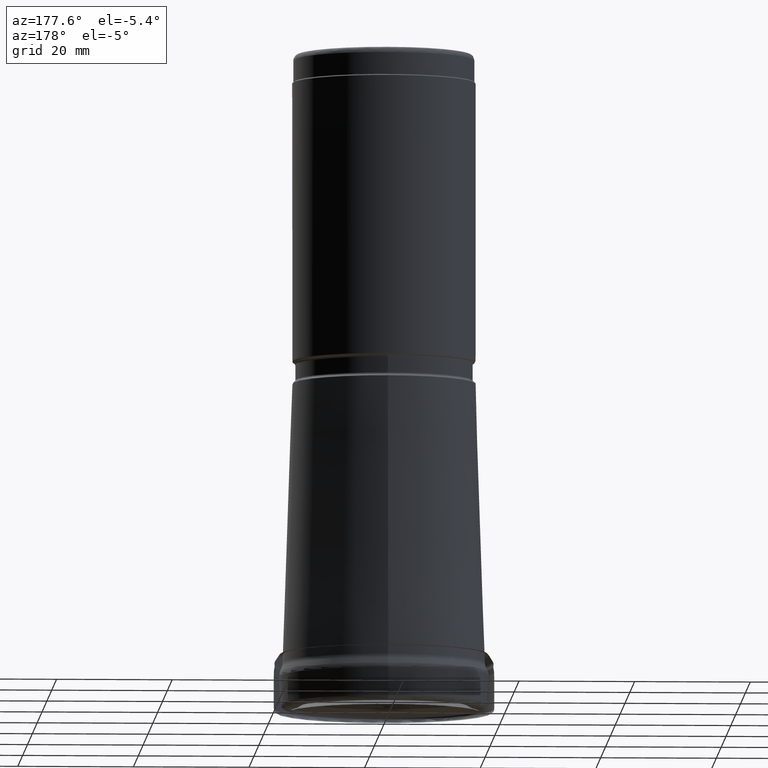
[diagram: clean part render]
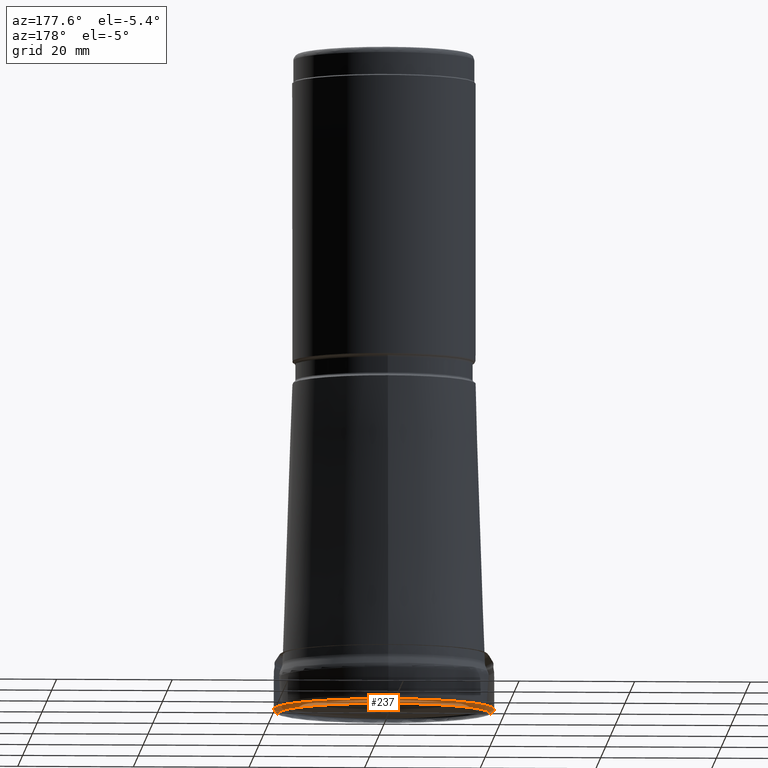
[diagram: same view with one face highlighted and labeled with its STEP entity id]
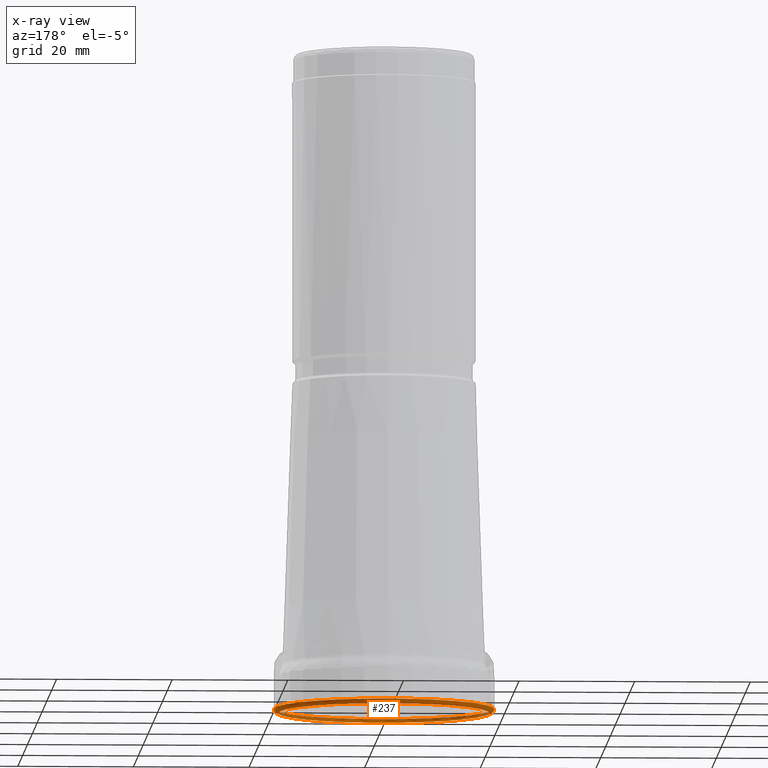
[diagram: x-ray of the same camera — body ghosted, the highlighted face saturated]
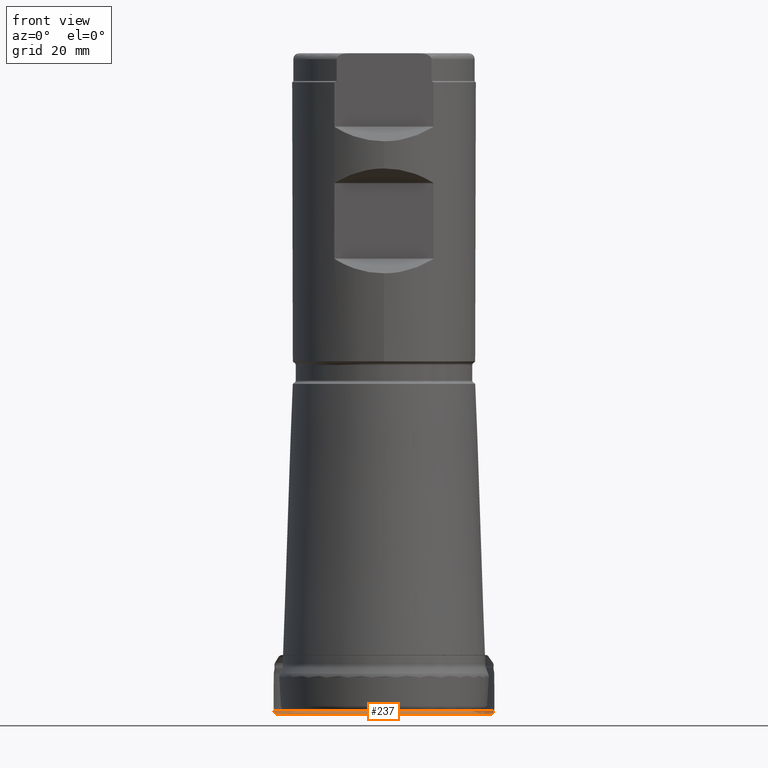
[diagram: same view with one face highlighted and labeled with its STEP entity id]
A machine part, auxiliary view. The second image highlights one B-rep face of the part: STEP entity #237.
The next image is the same camera in x-ray: the body ghosted, the highlighted face saturated — about 0% of this face is hidden behind the body in this view.
A second angle (front view) of the same face is appended — the face is thin or edge-on in the first view.
In plain terms, the highlighted face is a SurfaceOfRevolution surface.
Its self-contained STEP definition (entity closure, byte-faithful):
#114=SURFACE_OF_REVOLUTION('',#871,#137);
#137=AXIS1_PLACEMENT('',#1740,#1141);
#237=ADVANCED_FACE('',(#352,#353),#114,.F.);
#352=FACE_BOUND('',#456,.T.);
#353=FACE_BOUND('',#457,.T.);
#456=EDGE_LOOP('',(#606));
#457=EDGE_LOOP('',(#607));
#606=ORIENTED_EDGE('',*,*,#765,.T.);
#607=ORIENTED_EDGE('',*,*,#766,.F.);
#690=VERTEX_POINT('',#1718);
#691=VERTEX_POINT('',#1721);
#765=EDGE_CURVE('',#690,#690,#814,.T.);
#766=EDGE_CURVE('',#691,#691,#815,.T.);
#814=CIRCLE('',#958,18.3128691307005);
#815=CIRCLE('',#960,19.0600464833774);
#871=B_SPLINE_CURVE_WITH_KNOTS('',5,(#1722,#1723,#1724,#1725,#1726,#1727,
#1728,#1729,#1730,#1731,#1732,#1733,#1734,#1735,#1736,#1737,#1738,#1739),
 .UNSPECIFIED.,.F.,.F.,(6,1,1,1,1,1,1,1,1,1,1,1,1,6),(0.,0.0815484578508118,
0.19607296126137,0.311004769549675,0.366336847138034,0.425745325696048,
0.499901134464332,0.540432658447811,0.599446951375033,0.655207709416715,
0.699744704633038,0.769743222866344,0.88459806609471,1.),.UNSPECIFIED.);
#958=AXIS2_PLACEMENT_3D('',#1717,#1135,#1136);
#960=AXIS2_PLACEMENT_3D('',#1720,#1139,#1140);
#1135=DIRECTION('',(0.,0.,-1.));
#1136=DIRECTION('',(-1.,0.,0.));
#1139=DIRECTION('',(0.,0.,-1.));
#1140=DIRECTION('',(-1.,0.,0.));
#1141=DIRECTION('',(0.,0.,-1.));
#1717=CARTESIAN_POINT('',(0.,0.,-0.0198075635443264));
#1718=CARTESIAN_POINT('',(-18.3128691307005,0.,-0.0198075635443264));
#1720=CARTESIAN_POINT('',(0.,0.,0.723659401103771));
#1721=CARTESIAN_POINT('',(-19.0600464833774,0.,0.723659401103771));
#1722=CARTESIAN_POINT('',(19.0600446590056,-4.33680868994202E-16,0.723657464268608));
#1723=CARTESIAN_POINT('',(19.0599219754627,-4.33680868994202E-16,0.704661703991965));
#1724=CARTESIAN_POINT('',(19.0580650689817,-4.33680868994202E-16,0.658998986734256));
#1725=CARTESIAN_POINT('',(19.0492186990906,-2.40368644069386E-16,0.586846958355387));
#1726=CARTESIAN_POINT('',(19.0282749057246,-1.16553763225554E-15,0.503443809236252));
#1727=CARTESIAN_POINT('',(18.990480853866,-3.32103489925382E-15,0.410912441141965));
#1728=CARTESIAN_POINT('',(18.9418504808507,-6.30785838163785E-15,0.32577337187786));
#1729=CARTESIAN_POINT('',(18.8940624417213,-7.77532937336553E-15,0.26083134082612));
#1730=CARTESIAN_POINT('',(18.8494625716596,-7.99305182466152E-15,0.210150642430584));
#1731=CARTESIAN_POINT('',(18.800485145624,-5.55266492821682E-15,0.163579755679559));
#1732=CARTESIAN_POINT('',(18.7503503829918,-2.7078981265689E-16,0.1236798959848));
#1733=CARTESIAN_POINT('',(18.6981057440463,1.03625844028003E-14,0.0882940436143332));
#1734=CARTESIAN_POINT('',(18.6277345462273,2.93449485158648E-14,0.0492748932298284));
#1735=CARTESIAN_POINT('',(18.5411933709508,7.18752659045237E-14,0.0131113387586786));
#1736=CARTESIAN_POINT('',(18.4630254485587,1.05753954896758E-13,-0.00756580968813179));
#1737=CARTESIAN_POINT('',(18.3934287938542,1.58727198051878E-13,-0.0174942363376244));
#1738=CARTESIAN_POINT('',(18.3397635791194,1.58727198051878E-13,-0.0198471817202751));
#1739=CARTESIAN_POINT('',(18.3128691291618,1.58727198051878E-13,-0.0198048788629453));
#1740=CARTESIAN_POINT('',(0.,0.,0.));